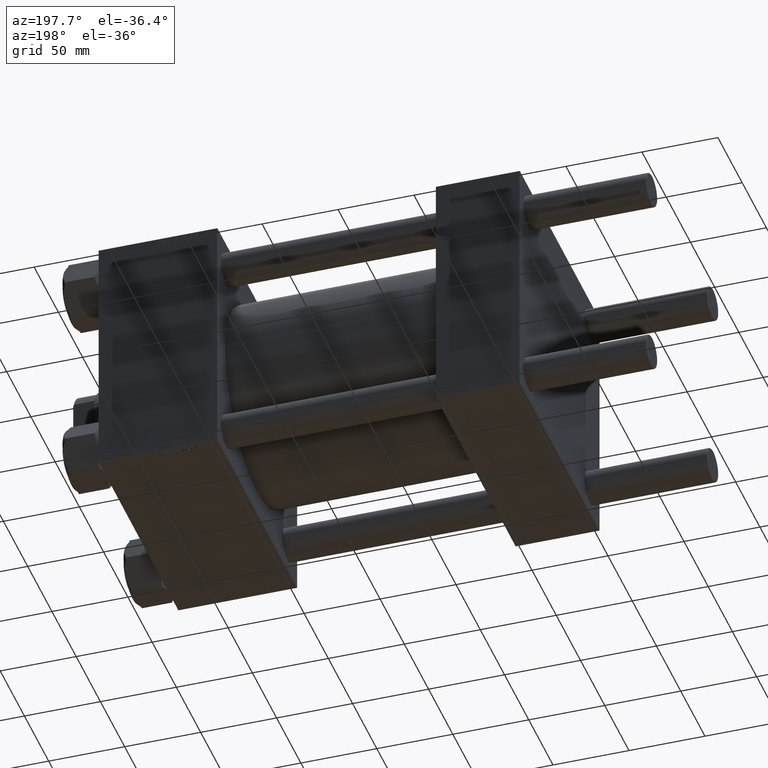
[diagram: clean part render]
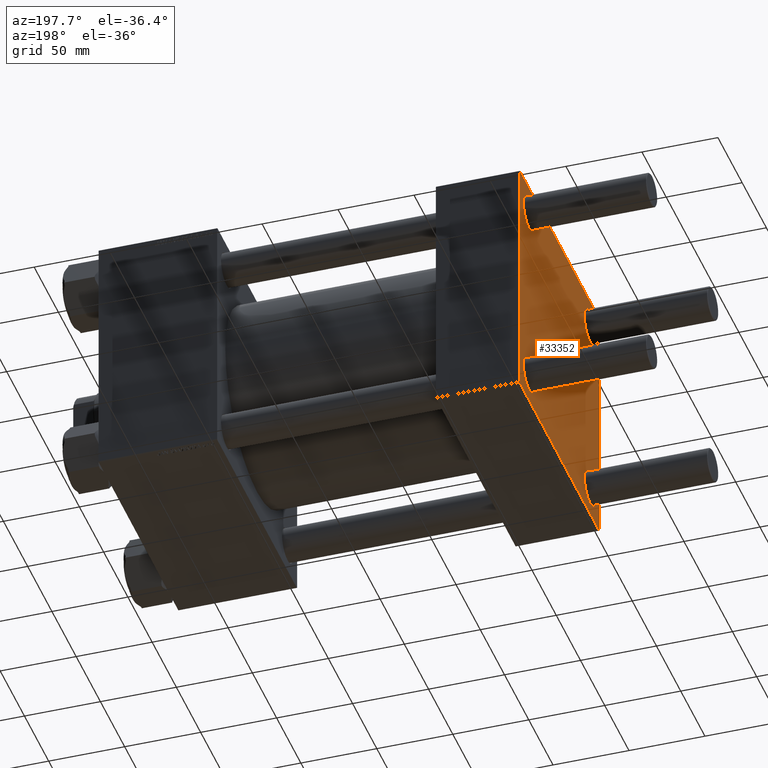
[diagram: same view with one face highlighted and labeled with its STEP entity id]
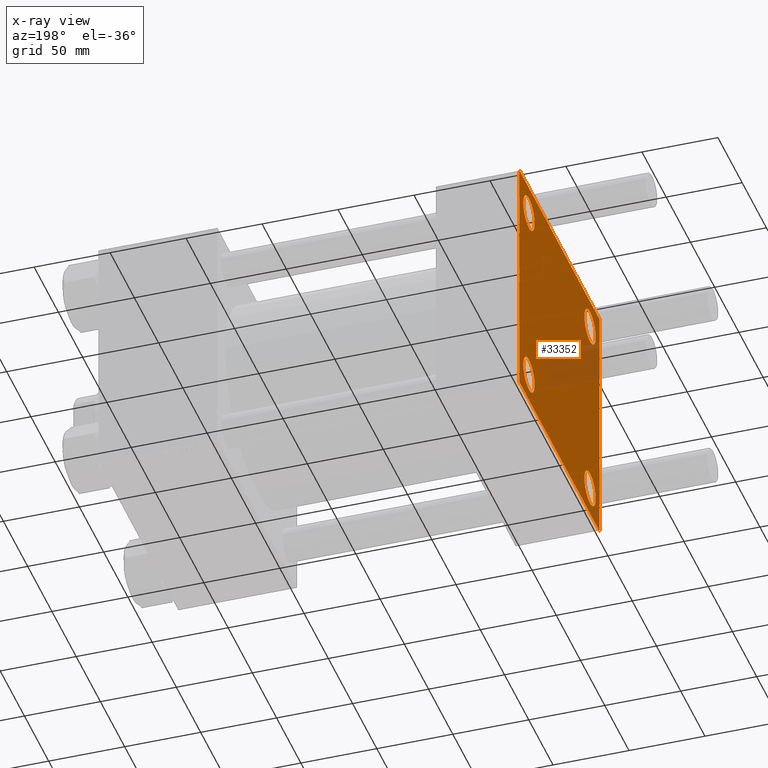
[diagram: x-ray of the same camera — body ghosted, the highlighted face saturated]
A machine part, auxiliary view. The second image highlights one B-rep face of the part: STEP entity #33352.
The next image is the same camera in x-ray: the body ghosted, the highlighted face saturated — about 12% of this face is hidden behind the body in this view.
In plain terms, the highlighted planar face has unit normal (-1, 0, 0).
Its self-contained STEP definition (entity closure, byte-faithful):
#144 = EDGE_CURVE ( 'NONE', #1160, #29355, #17335, .T. ) ;
#146 = VERTEX_POINT ( 'NONE', #29051 ) ;
#281 = ORIENTED_EDGE ( 'NONE', *, *, #2146, .T. ) ;
#315 = DIRECTION ( 'NONE',  ( 0.000000000000000000, 0.7071067811865474617, -0.7071067811865474617 ) ) ;
#466 = VERTEX_POINT ( 'NONE', #32842 ) ;
#565 = DIRECTION ( 'NONE',  ( -0.000000000000000000, -0.7071067811865474617, -0.7071067811865474617 ) ) ;
#696 = VECTOR ( 'NONE', #315, 1000.000000000000114 ) ;
#779 = VECTOR ( 'NONE', #24419, 999.9999999999998863 ) ;
#798 = CARTESIAN_POINT ( 'NONE',  ( 0.000000000000000000, -82.49999999999997158, 82.50000000000001421 ) ) ;
#1160 = VERTEX_POINT ( 'NONE', #25810 ) ;
#1449 = VECTOR ( 'NONE', #565, 1000.000000000000114 ) ;
#1826 = EDGE_CURVE ( 'NONE', #146, #18974, #39810, .T. ) ;
#2146 = EDGE_CURVE ( 'NONE', #1160, #3621, #20683, .T. ) ;
#2749 = FACE_BOUND ( 'NONE', #16604, .T. ) ;
#2776 = ORIENTED_EDGE ( 'NONE', *, *, #29045, .T. ) ;
#2887 = EDGE_LOOP ( 'NONE', ( #46213, #42699, #47938, #28059, #50141, #2776, #44434, #281 ) ) ;
#3499 = DIRECTION ( 'NONE',  ( 0.000000000000000000, 0.000000000000000000, 1.000000000000000000 ) ) ;
#3621 = VERTEX_POINT ( 'NONE', #7817 ) ;
#3689 = CARTESIAN_POINT ( 'NONE',  ( 0.000000000000000000, 82.50000000000002842, 82.50000000000002842 ) ) ;
#3985 = CARTESIAN_POINT ( 'NONE',  ( 0.000000000000000000, 62.95000000000000284, -62.95000000000000284 ) ) ;
#4347 = EDGE_CURVE ( 'NONE', #36674, #41042, #32076, .T. ) ;
#4581 = CARTESIAN_POINT ( 'NONE',  ( 0.000000000000000000, -81.99999999999997158, 82.50000000000001421 ) ) ;
#5140 = LINE ( 'NONE', #39346, #1449 ) ;
#5580 = DIRECTION ( 'NONE',  ( 0.000000000000000000, 0.000000000000000000, 1.000000000000000000 ) ) ;
#5653 = EDGE_CURVE ( 'NONE', #45188, #50234, #44845, .T. ) ;
#5867 = VECTOR ( 'NONE', #23509, 1000.000000000000000 ) ;
#7523 = CARTESIAN_POINT ( 'NONE',  ( 0.000000000000000000, 62.95000000000000284, 62.95000000000000284 ) ) ;
#7769 = ORIENTED_EDGE ( 'NONE', *, *, #9305, .T. ) ;
#7817 = CARTESIAN_POINT ( 'NONE',  ( 0.000000000000000000, 82.50000000000002842, 82.00000000000005684 ) ) ;
#8275 = DIRECTION ( 'NONE',  ( 0.000000000000000000, 0.000000000000000000, 1.000000000000000000 ) ) ;
#8805 = DIRECTION ( 'NONE',  ( 1.000000000000000000, -0.000000000000000000, -0.000000000000000000 ) ) ;
#9061 = EDGE_CURVE ( 'NONE', #12803, #49111, #31898, .T. ) ;
#9092 = CIRCLE ( 'NONE', #21281, 11.50000000000001066 ) ;
#9305 = EDGE_CURVE ( 'NONE', #18974, #146, #43305, .T. ) ;
#9528 = EDGE_CURVE ( 'NONE', #13885, #466, #15662, .T. ) ;
#10138 = FACE_BOUND ( 'NONE', #33864, .T. ) ;
#10817 = EDGE_CURVE ( 'NONE', #18490, #41042, #20163, .T. ) ;
#10997 = ORIENTED_EDGE ( 'NONE', *, *, #9061, .T. ) ;
#12090 = DIRECTION ( 'NONE',  ( 1.000000000000000000, -0.000000000000000000, -0.000000000000000000 ) ) ;
#12341 = EDGE_LOOP ( 'NONE', ( #38016, #45255 ) ) ;
#12803 = VERTEX_POINT ( 'NONE', #42843 ) ;
#13200 = AXIS2_PLACEMENT_3D ( 'NONE', #3985, #34357, #3499 ) ;
#13414 = ORIENTED_EDGE ( 'NONE', *, *, #1826, .T. ) ;
#13885 = VERTEX_POINT ( 'NONE', #22631 ) ;
#14855 = EDGE_CURVE ( 'NONE', #3621, #29312, #41433, .T. ) ;
#15662 = CIRCLE ( 'NONE', #33557, 11.50000000000001066 ) ;
#16604 = EDGE_LOOP ( 'NONE', ( #43727, #39320 ) ) ;
#16777 = EDGE_CURVE ( 'NONE', #30393, #36674, #42615, .T. ) ;
#17080 = CARTESIAN_POINT ( 'NONE',  ( 0.000000000000000000, 82.50000000000002842, 82.50000000000002842 ) ) ;
#17127 = AXIS2_PLACEMENT_3D ( 'NONE', #36425, #25874, #41450 ) ;
#17186 = AXIS2_PLACEMENT_3D ( 'NONE', #47707, #29291, #5580 ) ;
#17335 = LINE ( 'NONE', #17080, #35695 ) ;
#17688 = DIRECTION ( 'NONE',  ( -0.000000000000000000, 0.7071067811865474617, 0.7071067811865474617 ) ) ;
#18081 = CARTESIAN_POINT ( 'NONE',  ( 0.000000000000000000, -82.49999999999997158, 82.00000000000001421 ) ) ;
#18490 = VERTEX_POINT ( 'NONE', #18081 ) ;
#18587 = DIRECTION ( 'NONE',  ( 1.000000000000000000, -0.000000000000000000, -0.000000000000000000 ) ) ;
#18974 = VERTEX_POINT ( 'NONE', #27918 ) ;
#19167 = ORIENTED_EDGE ( 'NONE', *, *, #22840, .T. ) ;
#19373 = DIRECTION ( 'NONE',  ( 0.000000000000000000, -1.000000000000000000, -1.682156097916903588E-16 ) ) ;
#20163 = LINE ( 'NONE', #798, #5867 ) ;
#20683 = LINE ( 'NONE', #32405, #696 ) ;
#20696 = CARTESIAN_POINT ( 'NONE',  ( 0.000000000000000000, 62.95000000000000284, -74.45000000000001705 ) ) ;
#21168 = VECTOR ( 'NONE', #19373, 1000.000000000000000 ) ;
#21281 = AXIS2_PLACEMENT_3D ( 'NONE', #49990, #18587, #41821 ) ;
#22631 = CARTESIAN_POINT ( 'NONE',  ( 0.000000000000000000, 62.95000000000000284, 74.45000000000001705 ) ) ;
#22756 = VECTOR ( 'NONE', #50364, 1000.000000000000000 ) ;
#22840 = EDGE_CURVE ( 'NONE', #49111, #12803, #32644, .T. ) ;
#22986 = CARTESIAN_POINT ( 'NONE',  ( 0.000000000000000000, -82.00000000000000000, -82.50000000000000000 ) ) ;
#23087 = CIRCLE ( 'NONE', #49968, 11.50000000000001066 ) ;
#23509 = DIRECTION ( 'NONE',  ( 0.000000000000000000, -1.682156097916903588E-16, -1.000000000000000000 ) ) ;
#24203 = EDGE_CURVE ( 'NONE', #466, #13885, #9092, .T. ) ;
#24357 = DIRECTION ( 'NONE',  ( 0.000000000000000000, 0.000000000000000000, 1.000000000000000000 ) ) ;
#24419 = DIRECTION ( 'NONE',  ( 0.000000000000000000, -0.7071067811865376918, 0.7071067811865574537 ) ) ;
#25810 = CARTESIAN_POINT ( 'NONE',  ( 0.000000000000000000, 82.00000000000005684, 82.50000000000002842 ) ) ;
#25874 = DIRECTION ( 'NONE',  ( 1.000000000000000000, -0.000000000000000000, -0.000000000000000000 ) ) ;
#26343 = VECTOR ( 'NONE', #17688, 1000.000000000000114 ) ;
#26881 = DIRECTION ( 'NONE',  ( 0.000000000000000000, 0.000000000000000000, 1.000000000000000000 ) ) ;
#27309 = CARTESIAN_POINT ( 'NONE',  ( 0.000000000000000000, -62.94999999999998153, 62.95000000000001705 ) ) ;
#27712 = EDGE_LOOP ( 'NONE', ( #13414, #7769 ) ) ;
#27918 = CARTESIAN_POINT ( 'NONE',  ( 0.000000000000000000, -62.94999999999998153, -74.45000000000003126 ) ) ;
#28059 = ORIENTED_EDGE ( 'NONE', *, *, #4347, .T. ) ;
#28280 = CARTESIAN_POINT ( 'NONE',  ( 0.000000000000000000, 82.50000000000002842, -82.00000000000000000 ) ) ;
#29045 = EDGE_CURVE ( 'NONE', #18490, #29355, #37318, .T. ) ;
#29051 = CARTESIAN_POINT ( 'NONE',  ( 0.000000000000000000, -62.94999999999998153, -51.45000000000000995 ) ) ;
#29291 = DIRECTION ( 'NONE',  ( 1.000000000000000000, -0.000000000000000000, -0.000000000000000000 ) ) ;
#29312 = VERTEX_POINT ( 'NONE', #28280 ) ;
#29341 = CARTESIAN_POINT ( 'NONE',  ( 0.000000000000000000, -82.50000000000000000, -81.99999999999998579 ) ) ;
#29355 = VERTEX_POINT ( 'NONE', #4581 ) ;
#29921 = CARTESIAN_POINT ( 'NONE',  ( 0.000000000000000000, -82.25000000000000000, 82.25000000000000000 ) ) ;
#30014 = FACE_BOUND ( 'NONE', #27712, .T. ) ;
#30281 = PLANE ( 'NONE',  #30435 ) ;
#30393 = VERTEX_POINT ( 'NONE', #46386 ) ;
#30435 = AXIS2_PLACEMENT_3D ( 'NONE', #44836, #49670, #37420 ) ;
#30970 = DIRECTION ( 'NONE',  ( 1.000000000000000000, -0.000000000000000000, -0.000000000000000000 ) ) ;
#31623 = DIRECTION ( 'NONE',  ( 0.000000000000000000, 0.000000000000000000, 1.000000000000000000 ) ) ;
#31898 = CIRCLE ( 'NONE', #13200, 11.50000000000001066 ) ;
#31925 = EDGE_CURVE ( 'NONE', #50234, #45188, #23087, .T. ) ;
#32076 = LINE ( 'NONE', #43812, #779 ) ;
#32405 = CARTESIAN_POINT ( 'NONE',  ( 0.000000000000000000, 82.25000000000002842, 82.25000000000002842 ) ) ;
#32644 = CIRCLE ( 'NONE', #17186, 11.50000000000001066 ) ;
#32842 = CARTESIAN_POINT ( 'NONE',  ( 0.000000000000000000, 62.95000000000000284, 51.44999999999999574 ) ) ;
#33352 = ADVANCED_FACE ( 'NONE', ( #45342, #30014, #10138, #2749, #37677 ), #30281, .T. ) ;
#33557 = AXIS2_PLACEMENT_3D ( 'NONE', #7523, #30970, #26881 ) ;
#33864 = EDGE_LOOP ( 'NONE', ( #10997, #19167 ) ) ;
#34357 = DIRECTION ( 'NONE',  ( 1.000000000000000000, -0.000000000000000000, -0.000000000000000000 ) ) ;
#35695 = VECTOR ( 'NONE', #40799, 1000.000000000000000 ) ;
#36425 = CARTESIAN_POINT ( 'NONE',  ( 0.000000000000000000, -62.94999999999998153, 62.95000000000001705 ) ) ;
#36674 = VERTEX_POINT ( 'NONE', #22986 ) ;
#37318 = LINE ( 'NONE', #29921, #26343 ) ;
#37420 = DIRECTION ( 'NONE',  ( 0.000000000000000000, 0.000000000000000000, 1.000000000000000000 ) ) ;
#37677 = FACE_OUTER_BOUND ( 'NONE', #2887, .T. ) ;
#38016 = ORIENTED_EDGE ( 'NONE', *, *, #31925, .T. ) ;
#38171 = AXIS2_PLACEMENT_3D ( 'NONE', #47052, #12090, #8275 ) ;
#38787 = CARTESIAN_POINT ( 'NONE',  ( 0.000000000000000000, 82.50000000000002842, -82.49999999999997158 ) ) ;
#39320 = ORIENTED_EDGE ( 'NONE', *, *, #24203, .T. ) ;
#39346 = CARTESIAN_POINT ( 'NONE',  ( 0.000000000000000000, 82.25000000000001421, -82.25000000000001421 ) ) ;
#39810 = CIRCLE ( 'NONE', #38171, 11.50000000000001066 ) ;
#40076 = CARTESIAN_POINT ( 'NONE',  ( 0.000000000000000000, -62.94999999999998153, 74.45000000000003126 ) ) ;
#40799 = DIRECTION ( 'NONE',  ( 0.000000000000000000, -1.000000000000000000, -8.410780489584519171E-17 ) ) ;
#40937 = CARTESIAN_POINT ( 'NONE',  ( 0.000000000000000000, -62.94999999999998153, 51.45000000000000995 ) ) ;
#40985 = EDGE_CURVE ( 'NONE', #29312, #30393, #5140, .T. ) ;
#41042 = VERTEX_POINT ( 'NONE', #29341 ) ;
#41433 = LINE ( 'NONE', #3689, #22756 ) ;
#41450 = DIRECTION ( 'NONE',  ( 0.000000000000000000, 0.000000000000000000, 1.000000000000000000 ) ) ;
#41821 = DIRECTION ( 'NONE',  ( 0.000000000000000000, 0.000000000000000000, 1.000000000000000000 ) ) ;
#42615 = LINE ( 'NONE', #38787, #21168 ) ;
#42645 = DIRECTION ( 'NONE',  ( 1.000000000000000000, -0.000000000000000000, -0.000000000000000000 ) ) ;
#42699 = ORIENTED_EDGE ( 'NONE', *, *, #40985, .T. ) ;
#42843 = CARTESIAN_POINT ( 'NONE',  ( 0.000000000000000000, 62.95000000000000284, -51.44999999999999574 ) ) ;
#43305 = CIRCLE ( 'NONE', #48232, 11.50000000000001066 ) ;
#43727 = ORIENTED_EDGE ( 'NONE', *, *, #9528, .T. ) ;
#43759 = CARTESIAN_POINT ( 'NONE',  ( 0.000000000000000000, -62.94999999999998153, -62.95000000000001705 ) ) ;
#43812 = CARTESIAN_POINT ( 'NONE',  ( 0.000000000000000000, -82.25000000000115108, -82.24999999999886313 ) ) ;
#44434 = ORIENTED_EDGE ( 'NONE', *, *, #144, .F. ) ;
#44836 = CARTESIAN_POINT ( 'NONE',  ( 0.000000000000000000, 0.000000000000000000, 0.000000000000000000 ) ) ;
#44845 = CIRCLE ( 'NONE', #17127, 11.50000000000001066 ) ;
#45188 = VERTEX_POINT ( 'NONE', #40937 ) ;
#45255 = ORIENTED_EDGE ( 'NONE', *, *, #5653, .T. ) ;
#45342 = FACE_BOUND ( 'NONE', #12341, .T. ) ;
#46213 = ORIENTED_EDGE ( 'NONE', *, *, #14855, .T. ) ;
#46386 = CARTESIAN_POINT ( 'NONE',  ( 0.000000000000000000, 82.00000000000005684, -82.49999999999997158 ) ) ;
#47052 = CARTESIAN_POINT ( 'NONE',  ( 0.000000000000000000, -62.94999999999998153, -62.95000000000001705 ) ) ;
#47707 = CARTESIAN_POINT ( 'NONE',  ( 0.000000000000000000, 62.95000000000000284, -62.95000000000000284 ) ) ;
#47938 = ORIENTED_EDGE ( 'NONE', *, *, #16777, .T. ) ;
#48232 = AXIS2_PLACEMENT_3D ( 'NONE', #43759, #8805, #24357 ) ;
#49111 = VERTEX_POINT ( 'NONE', #20696 ) ;
#49670 = DIRECTION ( 'NONE',  ( -1.000000000000000000, 0.000000000000000000, 0.000000000000000000 ) ) ;
#49968 = AXIS2_PLACEMENT_3D ( 'NONE', #27309, #42645, #31623 ) ;
#49990 = CARTESIAN_POINT ( 'NONE',  ( 0.000000000000000000, 62.95000000000000284, 62.95000000000000284 ) ) ;
#50141 = ORIENTED_EDGE ( 'NONE', *, *, #10817, .F. ) ;
#50234 = VERTEX_POINT ( 'NONE', #40076 ) ;
#50364 = DIRECTION ( 'NONE',  ( 0.000000000000000000, 0.000000000000000000, -1.000000000000000000 ) ) ;